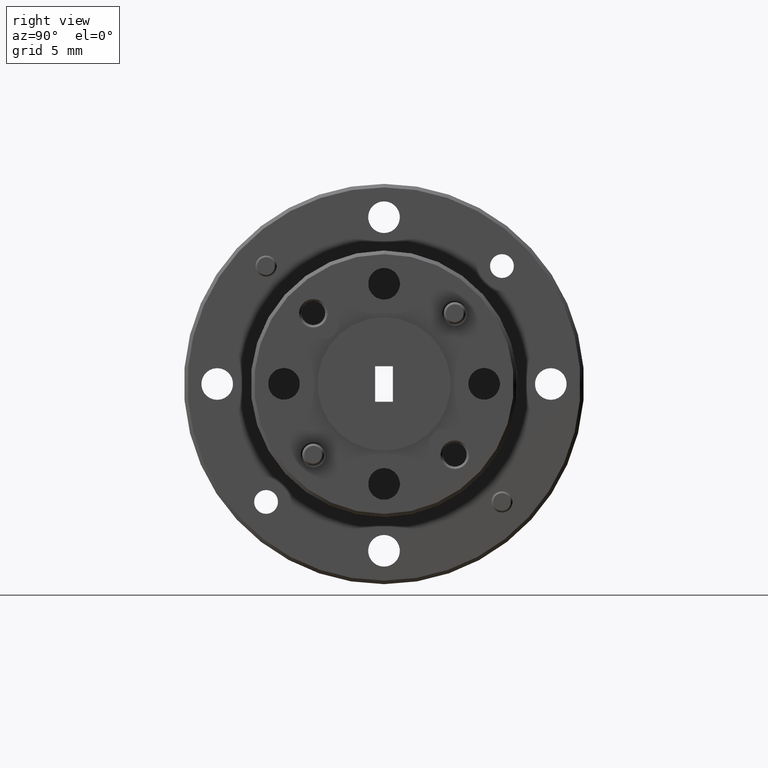
[diagram: clean part render]
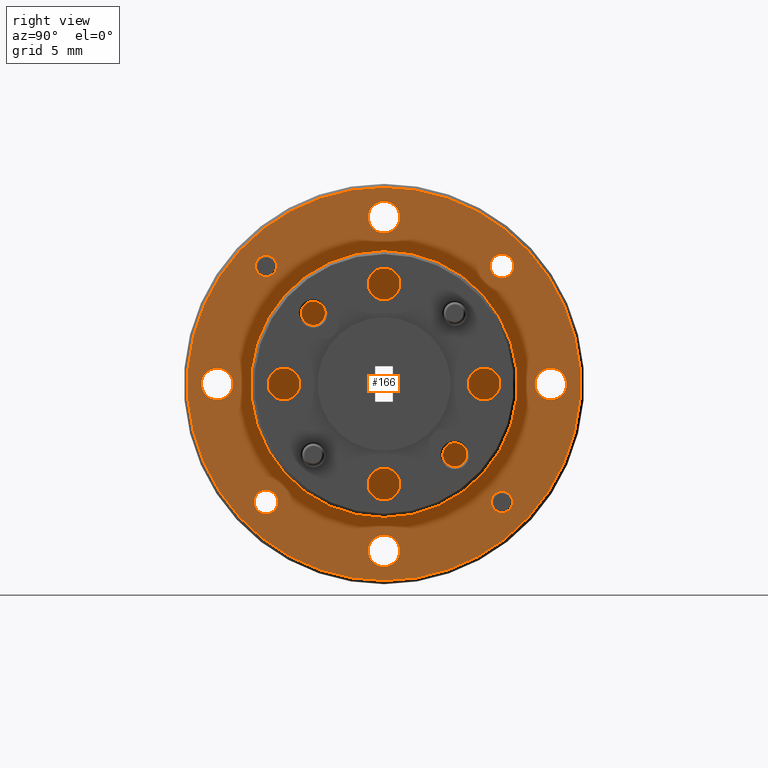
[diagram: same view with one face highlighted and labeled with its STEP entity id]
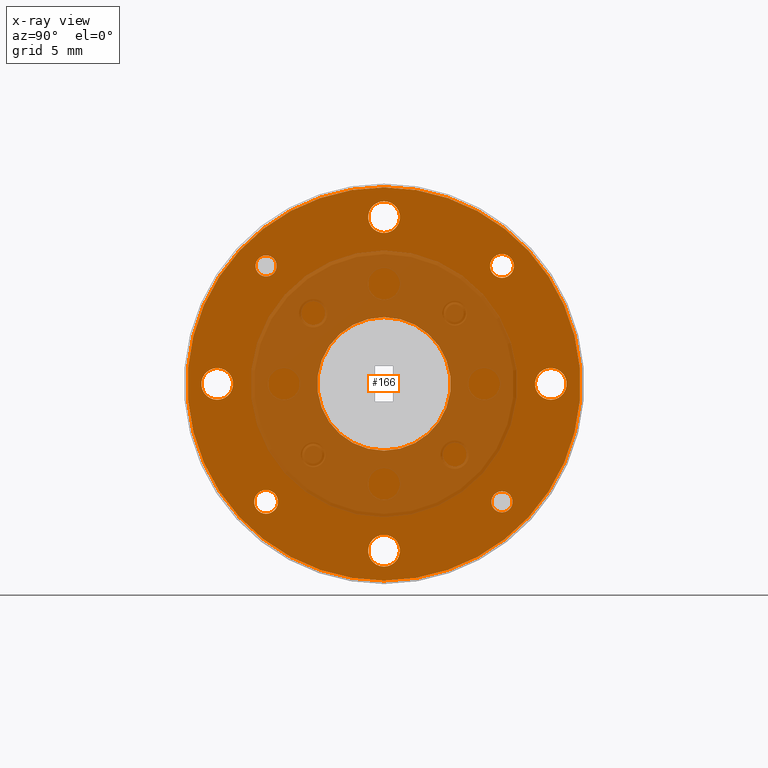
[diagram: x-ray of the same camera — body ghosted, the highlighted face saturated]
A machine part, right view. The second image highlights one B-rep face of the part: STEP entity #166.
The next image is the same camera in x-ray: the body ghosted, the highlighted face saturated — about 37% of this face is hidden behind the body in this view.
In plain terms, the highlighted planar face has unit normal (-1, 0, -0).
Its self-contained STEP definition (entity closure, byte-faithful):
#1 = CARTESIAN_POINT ( 'NONE',  ( -1.966036104178505900, 0.5396865508305747100, -0.06526081147306929400 ) ) ;
#2 = AXIS2_PLACEMENT_3D ( 'NONE', #1498, #2730, #896 ) ;
#6 = DIRECTION ( 'NONE',  ( 0.0000000000000000000, 0.0000000000000000000, 1.000000000000000000 ) ) ;
#19 = EDGE_LOOP ( 'NONE', ( #867, #1309 ) ) ;
#20 = CIRCLE ( 'NONE', #518, 0.03349999999999993300 ) ;
#29 = CARTESIAN_POINT ( 'NONE',  ( -1.966036104178505900, 0.5396865508305747100, -0.09876081147306928200 ) ) ;
#50 = EDGE_CURVE ( 'NONE', #2733, #2475, #2325, .T. ) ;
#58 = EDGE_CURVE ( 'NONE', #502, #2911, #1391, .T. ) ;
#62 = VERTEX_POINT ( 'NONE', #1958 ) ;
#75 = AXIS2_PLACEMENT_3D ( 'NONE', #3000, #2729, #6 ) ;
#102 = EDGE_CURVE ( 'NONE', #887, #2843, #2826, .T. ) ;
#109 = EDGE_LOOP ( 'NONE', ( #3346, #1147 ) ) ;
#127 = AXIS2_PLACEMENT_3D ( 'NONE', #3817, #263, #2403 ) ;
#130 = DIRECTION ( 'NONE',  ( 0.0000000000000000000, 0.0000000000000000000, 1.000000000000000000 ) ) ;
#136 = EDGE_CURVE ( 'NONE', #832, #1161, #1296, .T. ) ;
#143 = DIRECTION ( 'NONE',  ( 0.0000000000000000000, 0.0000000000000000000, 1.000000000000000000 ) ) ;
#157 = CARTESIAN_POINT ( 'NONE',  ( -1.966036104178505900, 0.5396865508305732600, 0.5976517958893190500 ) ) ;
#166 = ADVANCED_FACE ( 'NONE', ( #3203, #2081, #723, #3744, #3333, #2415, #3792, #491, #2963, #3656 ), #3783, .F. ) ;
#176 = DIRECTION ( 'NONE',  ( 1.000000000000000000, -1.598615139904834900E-061, -1.956366136326174500E-050 ) ) ;
#201 = DIRECTION ( 'NONE',  ( 0.0000000000000000000, 0.0000000000000000000, 1.000000000000000000 ) ) ;
#214 = ORIENTED_EDGE ( 'NONE', *, *, #3740, .F. ) ;
#215 = CARTESIAN_POINT ( 'NONE',  ( -1.966036104178505900, 0.8711428545117682100, 0.4536954922081257200 ) ) ;
#263 = DIRECTION ( 'NONE',  ( 1.000000000000000000, -1.598615139904834900E-061, -1.956366136326174500E-050 ) ) ;
#267 = CARTESIAN_POINT ( 'NONE',  ( -1.966036104178505900, 1.202599158192961800, 0.5641517958893206300 ) ) ;
#301 = CARTESIAN_POINT ( 'NONE',  ( -1.966036104178505900, 0.8711428545117682100, 0.7794454922081255300 ) ) ;
#334 = EDGE_CURVE ( 'NONE', #427, #3196, #2453, .T. ) ;
#342 = CARTESIAN_POINT ( 'NONE',  ( -1.966036104178505900, 0.4023928545117683700, 0.2661954922081256600 ) ) ;
#350 = EDGE_CURVE ( 'NONE', #1000, #3823, #20, .T. ) ;
#353 = EDGE_LOOP ( 'NONE', ( #1102, #1485 ) ) ;
#356 = CARTESIAN_POINT ( 'NONE',  ( -1.966036104178505900, 0.8711428545117682100, 0.8186954922081255400 ) ) ;
#403 = EDGE_LOOP ( 'NONE', ( #3623, #481 ) ) ;
#416 = CARTESIAN_POINT ( 'NONE',  ( -1.966036104178505900, 0.8711428545117682100, 0.2661954922081256600 ) ) ;
#427 = VERTEX_POINT ( 'NONE', #2714 ) ;
#467 = CIRCLE ( 'NONE', #3735, 0.04449999999999975500 ) ;
#481 = ORIENTED_EDGE ( 'NONE', *, *, #1019, .F. ) ;
#491 = FACE_BOUND ( 'NONE', #403, .T. ) ;
#502 = VERTEX_POINT ( 'NONE', #2182 ) ;
#506 = EDGE_LOOP ( 'NONE', ( #2220, #2462 ) ) ;
#518 = AXIS2_PLACEMENT_3D ( 'NONE', #1522, #3600, #2747 ) ;
#558 = DIRECTION ( 'NONE',  ( 0.0000000000000000000, 0.0000000000000000000, 1.000000000000000000 ) ) ;
#708 = DIRECTION ( 'NONE',  ( 0.0000000000000000000, 0.0000000000000000000, 1.000000000000000000 ) ) ;
#723 = FACE_BOUND ( 'NONE', #2133, .T. ) ;
#794 = EDGE_CURVE ( 'NONE', #3823, #1000, #2419, .T. ) ;
#822 = ORIENTED_EDGE ( 'NONE', *, *, #3226, .F. ) ;
#832 = VERTEX_POINT ( 'NONE', #1991 ) ;
#838 = EDGE_CURVE ( 'NONE', #858, #3570, #3119, .T. ) ;
#849 = CARTESIAN_POINT ( 'NONE',  ( -1.966036104178505900, 0.8711428545117682100, -0.2025545077918742300 ) ) ;
#858 = VERTEX_POINT ( 'NONE', #2055 ) ;
#862 = CARTESIAN_POINT ( 'NONE',  ( -1.966036104178505900, 0.8711428545117682100, 0.2661954922081256600 ) ) ;
#863 = ORIENTED_EDGE ( 'NONE', *, *, #3814, .F. ) ;
#867 = ORIENTED_EDGE ( 'NONE', *, *, #992, .F. ) ;
#872 = DIRECTION ( 'NONE',  ( -1.956366136326174300E-050, 0.0000000000000000000, 1.000000000000000000 ) ) ;
#887 = VERTEX_POINT ( 'NONE', #215 ) ;
#896 = DIRECTION ( 'NONE',  ( 0.0000000000000000000, 0.0000000000000000000, 1.000000000000000000 ) ) ;
#934 = CARTESIAN_POINT ( 'NONE',  ( -1.966036104178505900, 1.339892854511768100, 0.2216954922081259300 ) ) ;
#970 = EDGE_LOOP ( 'NONE', ( #1808, #2173 ) ) ;
#992 = EDGE_CURVE ( 'NONE', #62, #2364, #3093, .T. ) ;
#1000 = VERTEX_POINT ( 'NONE', #267 ) ;
#1019 = EDGE_CURVE ( 'NONE', #1161, #832, #2017, .T. ) ;
#1028 = CIRCLE ( 'NONE', #1132, 0.04449999999999975500 ) ;
#1102 = ORIENTED_EDGE ( 'NONE', *, *, #1257, .F. ) ;
#1128 = DIRECTION ( 'NONE',  ( 1.000000000000000000, -1.598615139904834900E-061, -1.956366136326174500E-050 ) ) ;
#1132 = AXIS2_PLACEMENT_3D ( 'NONE', #3242, #2063, #1735 ) ;
#1147 = ORIENTED_EDGE ( 'NONE', *, *, #3808, .F. ) ;
#1148 = AXIS2_PLACEMENT_3D ( 'NONE', #157, #3205, #1720 ) ;
#1161 = VERTEX_POINT ( 'NONE', #29 ) ;
#1187 = CIRCLE ( 'NONE', #1354, 0.04449999999999975500 ) ;
#1257 = EDGE_CURVE ( 'NONE', #3332, #2735, #2154, .T. ) ;
#1296 = CIRCLE ( 'NONE', #3311, 0.03349999999999999500 ) ;
#1309 = ORIENTED_EDGE ( 'NONE', *, *, #3505, .F. ) ;
#1334 = AXIS2_PLACEMENT_3D ( 'NONE', #416, #1915, #708 ) ;
#1354 = AXIS2_PLACEMENT_3D ( 'NONE', #3383, #1576, #3652 ) ;
#1391 = CIRCLE ( 'NONE', #2793, 0.02975000000000000200 ) ;
#1420 = DIRECTION ( 'NONE',  ( 0.0000000000000000000, 0.0000000000000000000, 1.000000000000000000 ) ) ;
#1459 = CARTESIAN_POINT ( 'NONE',  ( -1.966036104178505900, 0.5396865508305747100, -0.06526081147306929400 ) ) ;
#1461 = CARTESIAN_POINT ( 'NONE',  ( -1.966036104178505900, 1.433642854511768300, 0.2661954922081256600 ) ) ;
#1475 = AXIS2_PLACEMENT_3D ( 'NONE', #1459, #2106, #3031 ) ;
#1485 = ORIENTED_EDGE ( 'NONE', *, *, #3277, .F. ) ;
#1498 = CARTESIAN_POINT ( 'NONE',  ( -1.966036104178505900, 1.339892854511768100, 0.2661954922081256600 ) ) ;
#1522 = CARTESIAN_POINT ( 'NONE',  ( -1.966036104178505900, 1.202599158192961800, 0.5976517958893206000 ) ) ;
#1558 = AXIS2_PLACEMENT_3D ( 'NONE', #2840, #3147, #3137 ) ;
#1576 = DIRECTION ( 'NONE',  ( 1.000000000000000000, -1.598615139904834900E-061, -1.956366136326174500E-050 ) ) ;
#1628 = CIRCLE ( 'NONE', #1148, 0.02975000000000000200 ) ;
#1676 = CARTESIAN_POINT ( 'NONE',  ( -1.966036104178505900, 0.8711428545117682100, 0.6904454922081260100 ) ) ;
#1720 = DIRECTION ( 'NONE',  ( 0.0000000000000000000, 0.0000000000000000000, 1.000000000000000000 ) ) ;
#1735 = DIRECTION ( 'NONE',  ( 0.0000000000000000000, 0.0000000000000000000, 1.000000000000000000 ) ) ;
#1794 = DIRECTION ( 'NONE',  ( -1.000000000000000000, 1.598615139904834900E-061, -1.956366136326174300E-050 ) ) ;
#1797 = CARTESIAN_POINT ( 'NONE',  ( -1.966036104178505900, 0.8711428545117682100, 0.2661954922081256600 ) ) ;
#1808 = ORIENTED_EDGE ( 'NONE', *, *, #3363, .F. ) ;
#1829 = DIRECTION ( 'NONE',  ( 1.000000000000000000, -1.598615139904834900E-061, -1.956366136326174500E-050 ) ) ;
#1886 = DIRECTION ( 'NONE',  ( 1.000000000000000000, -1.598615139904834900E-061, -1.956366136326174500E-050 ) ) ;
#1912 = AXIS2_PLACEMENT_3D ( 'NONE', #1797, #3237, #1420 ) ;
#1915 = DIRECTION ( 'NONE',  ( 1.000000000000000000, -1.598615139904834900E-061, -1.956366136326174500E-050 ) ) ;
#1956 = EDGE_CURVE ( 'NONE', #3570, #858, #467, .T. ) ;
#1958 = CARTESIAN_POINT ( 'NONE',  ( -1.966036104178505900, 1.339892854511768100, 0.3106954922081254200 ) ) ;
#1977 = CARTESIAN_POINT ( 'NONE',  ( -1.966036104178505900, 1.202599158192961800, 0.5976517958893206000 ) ) ;
#1991 = CARTESIAN_POINT ( 'NONE',  ( -1.966036104178505900, 0.5396865508305747100, -0.03176081147306929200 ) ) ;
#2017 = CIRCLE ( 'NONE', #1475, 0.03349999999999999500 ) ;
#2036 = ORIENTED_EDGE ( 'NONE', *, *, #50, .F. ) ;
#2042 = AXIS2_PLACEMENT_3D ( 'NONE', #862, #2993, #3587 ) ;
#2055 = CARTESIAN_POINT ( 'NONE',  ( -1.966036104178505900, 0.4023928545117683700, 0.2216954922081259300 ) ) ;
#2063 = DIRECTION ( 'NONE',  ( 1.000000000000000000, -1.598615139904834900E-061, -1.956366136326174500E-050 ) ) ;
#2081 = FACE_BOUND ( 'NONE', #2818, .T. ) ;
#2106 = DIRECTION ( 'NONE',  ( 1.000000000000000000, -1.598615139904834900E-061, -1.956366136326174500E-050 ) ) ;
#2126 = CARTESIAN_POINT ( 'NONE',  ( -1.966036104178505900, 1.202599158192963100, -0.06526081147306768400 ) ) ;
#2133 = EDGE_LOOP ( 'NONE', ( #2690, #2323 ) ) ;
#2136 = DIRECTION ( 'NONE',  ( 0.0000000000000000000, 0.0000000000000000000, 1.000000000000000000 ) ) ;
#2154 = CIRCLE ( 'NONE', #1558, 0.04449999999999975500 ) ;
#2173 = ORIENTED_EDGE ( 'NONE', *, *, #334, .F. ) ;
#2182 = CARTESIAN_POINT ( 'NONE',  ( -1.966036104178505900, 0.5396865508305732600, 0.5679017958893191100 ) ) ;
#2198 = EDGE_LOOP ( 'NONE', ( #863, #2036 ) ) ;
#2220 = ORIENTED_EDGE ( 'NONE', *, *, #3574, .F. ) ;
#2272 = AXIS2_PLACEMENT_3D ( 'NONE', #849, #1128, #558 ) ;
#2288 = CARTESIAN_POINT ( 'NONE',  ( -1.966036104178505900, 0.8711428545117682100, -0.2470545077918739900 ) ) ;
#2323 = ORIENTED_EDGE ( 'NONE', *, *, #838, .F. ) ;
#2325 = CIRCLE ( 'NONE', #75, 0.5524999999999998800 ) ;
#2343 = CARTESIAN_POINT ( 'NONE',  ( -1.966036104178505900, 1.202599158192963100, -0.03551081147306771300 ) ) ;
#2364 = VERTEX_POINT ( 'NONE', #934 ) ;
#2403 = DIRECTION ( 'NONE',  ( 0.0000000000000000000, 0.0000000000000000000, 1.000000000000000000 ) ) ;
#2415 = FACE_BOUND ( 'NONE', #506, .T. ) ;
#2419 = CIRCLE ( 'NONE', #3377, 0.03349999999999993300 ) ;
#2453 = CIRCLE ( 'NONE', #2846, 0.02974999999999997100 ) ;
#2462 = ORIENTED_EDGE ( 'NONE', *, *, #58, .F. ) ;
#2475 = VERTEX_POINT ( 'NONE', #356 ) ;
#2487 = CIRCLE ( 'NONE', #2272, 0.04449999999999975500 ) ;
#2534 = DIRECTION ( 'NONE',  ( 1.000000000000000000, -1.598615139904834900E-061, -1.956366136326174500E-050 ) ) ;
#2535 = CARTESIAN_POINT ( 'NONE',  ( -1.966036104178505900, 0.8711428545117682100, -0.2863045077918742700 ) ) ;
#2559 = VERTEX_POINT ( 'NONE', #2288 ) ;
#2650 = CIRCLE ( 'NONE', #127, 0.04449999999999975500 ) ;
#2690 = ORIENTED_EDGE ( 'NONE', *, *, #1956, .F. ) ;
#2709 = AXIS2_PLACEMENT_3D ( 'NONE', #3781, #176, #130 ) ;
#2714 = CARTESIAN_POINT ( 'NONE',  ( -1.966036104178505900, 1.202599158192963100, -0.09501081147306765500 ) ) ;
#2721 = CIRCLE ( 'NONE', #3446, 0.02974999999999997100 ) ;
#2727 = ORIENTED_EDGE ( 'NONE', *, *, #350, .F. ) ;
#2729 = DIRECTION ( 'NONE',  ( -1.000000000000000000, 0.0000000000000000000, 0.0000000000000000000 ) ) ;
#2730 = DIRECTION ( 'NONE',  ( 1.000000000000000000, -1.598615139904834900E-061, -1.956366136326174500E-050 ) ) ;
#2733 = VERTEX_POINT ( 'NONE', #2535 ) ;
#2735 = VERTEX_POINT ( 'NONE', #1676 ) ;
#2746 = CARTESIAN_POINT ( 'NONE',  ( -1.966036104178505900, 1.202599158192963100, -0.06526081147306768400 ) ) ;
#2747 = DIRECTION ( 'NONE',  ( 0.0000000000000000000, 0.0000000000000000000, 1.000000000000000000 ) ) ;
#2793 = AXIS2_PLACEMENT_3D ( 'NONE', #2830, #2534, #2817 ) ;
#2811 = CARTESIAN_POINT ( 'NONE',  ( -1.966036104178505900, 0.4023928545117683700, 0.3106954922081254200 ) ) ;
#2817 = DIRECTION ( 'NONE',  ( 0.0000000000000000000, 0.0000000000000000000, 1.000000000000000000 ) ) ;
#2818 = EDGE_LOOP ( 'NONE', ( #214, #822 ) ) ;
#2826 = CIRCLE ( 'NONE', #1334, 0.1875000000000000600 ) ;
#2830 = CARTESIAN_POINT ( 'NONE',  ( -1.966036104178505900, 0.5396865508305732600, 0.5976517958893190500 ) ) ;
#2840 = CARTESIAN_POINT ( 'NONE',  ( -1.966036104178505900, 0.8711428545117682100, 0.7349454922081257700 ) ) ;
#2843 = VERTEX_POINT ( 'NONE', #3058 ) ;
#2845 = DIRECTION ( 'NONE',  ( 1.000000000000000000, -1.598615139904834900E-061, -1.956366136326174500E-050 ) ) ;
#2846 = AXIS2_PLACEMENT_3D ( 'NONE', #2126, #3052, #2136 ) ;
#2899 = DIRECTION ( 'NONE',  ( 1.000000000000000000, -1.598615139904834900E-061, -1.956366136326174500E-050 ) ) ;
#2911 = VERTEX_POINT ( 'NONE', #3087 ) ;
#2917 = AXIS2_PLACEMENT_3D ( 'NONE', #1461, #1794, #872 ) ;
#2937 = CARTESIAN_POINT ( 'NONE',  ( -1.966036104178505900, 1.202599158192961800, 0.6311517958893205800 ) ) ;
#2954 = CARTESIAN_POINT ( 'NONE',  ( -1.966036104178505900, 0.8711428545117682100, -0.1580545077918744700 ) ) ;
#2963 = FACE_BOUND ( 'NONE', #3872, .T. ) ;
#2993 = DIRECTION ( 'NONE',  ( 1.000000000000000000, -1.598615139904834900E-061, -1.956366136326174500E-050 ) ) ;
#3000 = CARTESIAN_POINT ( 'NONE',  ( -1.966036104178505900, 0.8711428545117682100, 0.2661954922081256600 ) ) ;
#3031 = DIRECTION ( 'NONE',  ( 0.0000000000000000000, 0.0000000000000000000, 1.000000000000000000 ) ) ;
#3052 = DIRECTION ( 'NONE',  ( 1.000000000000000000, -1.598615139904834900E-061, -1.956366136326174500E-050 ) ) ;
#3058 = CARTESIAN_POINT ( 'NONE',  ( -1.966036104178505900, 0.8711428545117682100, 0.07869549220812562000 ) ) ;
#3087 = CARTESIAN_POINT ( 'NONE',  ( -1.966036104178505900, 0.5396865508305732600, 0.6274017958893191000 ) ) ;
#3093 = CIRCLE ( 'NONE', #2, 0.04449999999999975500 ) ;
#3119 = CIRCLE ( 'NONE', #2709, 0.04449999999999975500 ) ;
#3137 = DIRECTION ( 'NONE',  ( 0.0000000000000000000, 0.0000000000000000000, 1.000000000000000000 ) ) ;
#3147 = DIRECTION ( 'NONE',  ( 1.000000000000000000, -1.598615139904834900E-061, -1.956366136326174500E-050 ) ) ;
#3172 = ORIENTED_EDGE ( 'NONE', *, *, #794, .F. ) ;
#3196 = VERTEX_POINT ( 'NONE', #2343 ) ;
#3203 = FACE_BOUND ( 'NONE', #109, .T. ) ;
#3205 = DIRECTION ( 'NONE',  ( 1.000000000000000000, -1.598615139904834900E-061, -1.956366136326174500E-050 ) ) ;
#3225 = CIRCLE ( 'NONE', #1912, 0.5524999999999998800 ) ;
#3226 = EDGE_CURVE ( 'NONE', #2559, #3279, #2650, .T. ) ;
#3237 = DIRECTION ( 'NONE',  ( -1.000000000000000000, 0.0000000000000000000, 0.0000000000000000000 ) ) ;
#3242 = CARTESIAN_POINT ( 'NONE',  ( -1.966036104178505900, 0.8711428545117682100, 0.7349454922081257700 ) ) ;
#3277 = EDGE_CURVE ( 'NONE', #2735, #3332, #1028, .T. ) ;
#3279 = VERTEX_POINT ( 'NONE', #2954 ) ;
#3311 = AXIS2_PLACEMENT_3D ( 'NONE', #1, #2845, #201 ) ;
#3327 = DIRECTION ( 'NONE',  ( 0.0000000000000000000, 0.0000000000000000000, 1.000000000000000000 ) ) ;
#3332 = VERTEX_POINT ( 'NONE', #301 ) ;
#3333 = FACE_BOUND ( 'NONE', #19, .T. ) ;
#3346 = ORIENTED_EDGE ( 'NONE', *, *, #102, .F. ) ;
#3363 = EDGE_CURVE ( 'NONE', #3196, #427, #2721, .T. ) ;
#3368 = DIRECTION ( 'NONE',  ( 0.0000000000000000000, 0.0000000000000000000, 1.000000000000000000 ) ) ;
#3377 = AXIS2_PLACEMENT_3D ( 'NONE', #1977, #2899, #143 ) ;
#3383 = CARTESIAN_POINT ( 'NONE',  ( -1.966036104178505900, 1.339892854511768100, 0.2661954922081256600 ) ) ;
#3446 = AXIS2_PLACEMENT_3D ( 'NONE', #2746, #1829, #3327 ) ;
#3505 = EDGE_CURVE ( 'NONE', #2364, #62, #1187, .T. ) ;
#3570 = VERTEX_POINT ( 'NONE', #2811 ) ;
#3574 = EDGE_CURVE ( 'NONE', #2911, #502, #1628, .T. ) ;
#3587 = DIRECTION ( 'NONE',  ( 0.0000000000000000000, 0.0000000000000000000, 1.000000000000000000 ) ) ;
#3600 = DIRECTION ( 'NONE',  ( 1.000000000000000000, -1.598615139904834900E-061, -1.956366136326174500E-050 ) ) ;
#3623 = ORIENTED_EDGE ( 'NONE', *, *, #136, .F. ) ;
#3652 = DIRECTION ( 'NONE',  ( 0.0000000000000000000, 0.0000000000000000000, 1.000000000000000000 ) ) ;
#3656 = FACE_OUTER_BOUND ( 'NONE', #2198, .T. ) ;
#3735 = AXIS2_PLACEMENT_3D ( 'NONE', #342, #1886, #3368 ) ;
#3740 = EDGE_CURVE ( 'NONE', #3279, #2559, #2487, .T. ) ;
#3744 = FACE_BOUND ( 'NONE', #353, .T. ) ;
#3781 = CARTESIAN_POINT ( 'NONE',  ( -1.966036104178505900, 0.4023928545117683700, 0.2661954922081256600 ) ) ;
#3783 = PLANE ( 'NONE',  #2917 ) ;
#3792 = FACE_BOUND ( 'NONE', #970, .T. ) ;
#3808 = EDGE_CURVE ( 'NONE', #2843, #887, #3819, .T. ) ;
#3814 = EDGE_CURVE ( 'NONE', #2475, #2733, #3225, .T. ) ;
#3817 = CARTESIAN_POINT ( 'NONE',  ( -1.966036104178505900, 0.8711428545117682100, -0.2025545077918742300 ) ) ;
#3819 = CIRCLE ( 'NONE', #2042, 0.1875000000000000600 ) ;
#3823 = VERTEX_POINT ( 'NONE', #2937 ) ;
#3872 = EDGE_LOOP ( 'NONE', ( #3172, #2727 ) ) ;